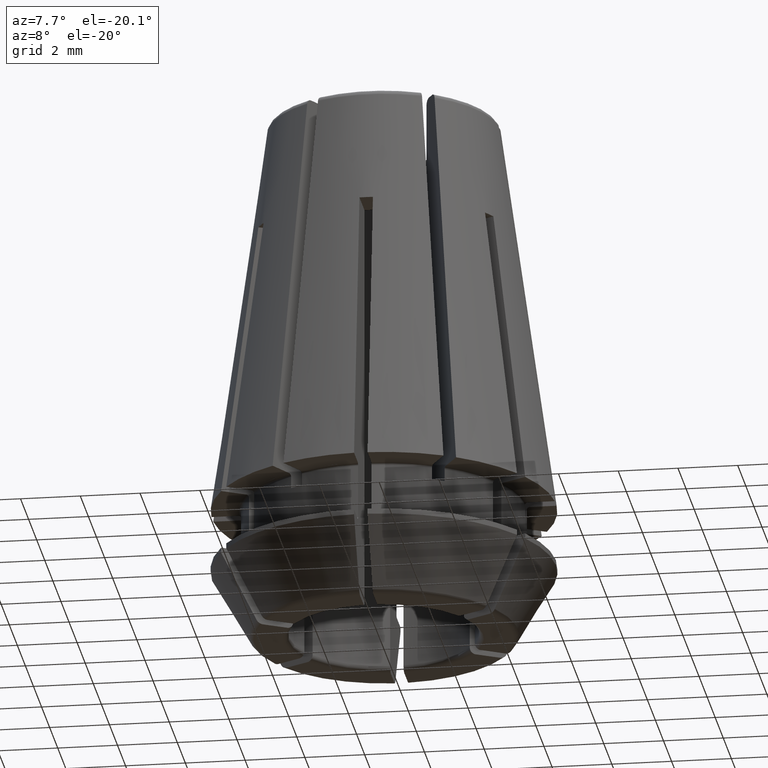
[diagram: clean part render]
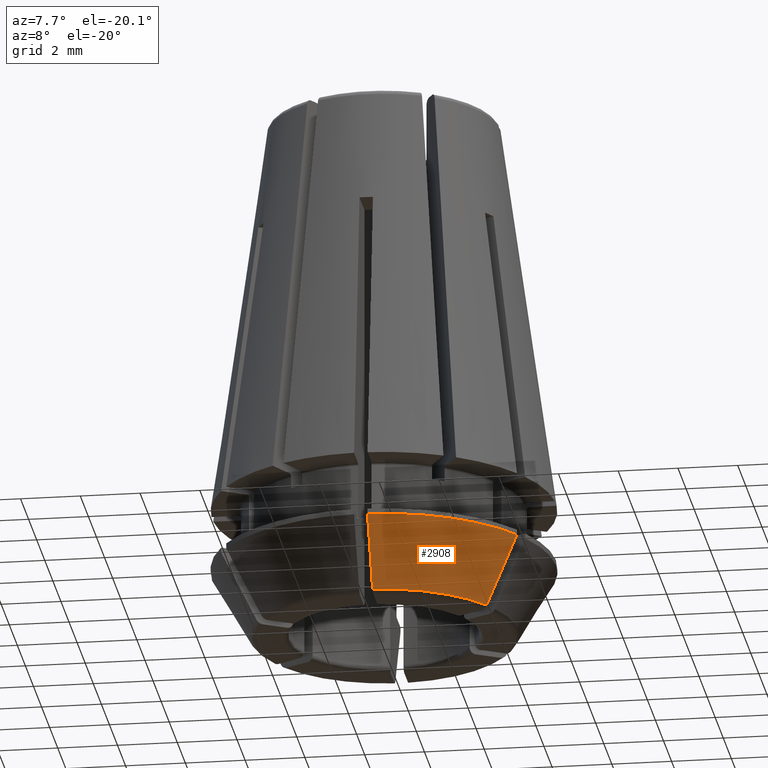
[diagram: same view with one face highlighted and labeled with its STEP entity id]
A machine part, auxiliary view. The second image highlights one B-rep face of the part: STEP entity #2908.
In plain terms, the highlighted conical surface has half-angle 30 deg.
Its self-contained STEP definition (entity closure, byte-faithful):
#63=CONICAL_SURFACE('',#3215,5.6232050807569,0.523598775598259);
#591=CIRCLE('',#3183,11643.0884272004);
#602=CIRCLE('',#3204,4.47879311067464);
#608=CIRCLE('',#3216,11643.0883600597);
#609=CIRCLE('',#3217,5.75);
#1231=ORIENTED_EDGE('',*,*,#1940,.F.);
#1232=ORIENTED_EDGE('',*,*,#1941,.F.);
#1233=ORIENTED_EDGE('',*,*,#1896,.T.);
#1234=ORIENTED_EDGE('',*,*,#1930,.T.);
#1896=EDGE_CURVE('',#2251,#2250,#591,.T.);
#1930=EDGE_CURVE('',#2250,#2273,#602,.T.);
#1940=EDGE_CURVE('',#2278,#2273,#608,.T.);
#1941=EDGE_CURVE('',#2251,#2278,#609,.T.);
#2250=VERTEX_POINT('',#5244);
#2251=VERTEX_POINT('',#5246);
#2273=VERTEX_POINT('',#5338);
#2278=VERTEX_POINT('',#5363);
#2550=EDGE_LOOP('',(#1231,#1232,#1233,#1234));
#2708=FACE_BOUND('',#2550,.T.);
#2908=ADVANCED_FACE('',(#2708),#63,.T.);
#3183=AXIS2_PLACEMENT_3D('',#5245,#3850,#3851);
#3204=AXIS2_PLACEMENT_3D('',#5339,#3906,#3907);
#3215=AXIS2_PLACEMENT_3D('',#5361,#3931,#3932);
#3216=AXIS2_PLACEMENT_3D('',#5362,#3933,#3934);
#3217=AXIS2_PLACEMENT_3D('',#5364,#3935,#3936);
#3850=DIRECTION('',(1.,0.,0.));
#3851=DIRECTION('',(0.,-0.865866893396021,-0.500274447599239));
#3906=DIRECTION('',(0.,0.,1.));
#3907=DIRECTION('',(1.,0.,0.));
#3931=DIRECTION('',(0.,0.,1.));
#3932=DIRECTION('',(1.,0.,0.));
#3933=DIRECTION('',(0.499999999996916,0.866025403786219,2.03322417782368E-12));
#3934=DIRECTION('',(0.749862725979123,-0.432933446694579,-0.500274447598826));
#3935=DIRECTION('',(0.,0.,1.));
#3936=DIRECTION('',(1.,0.,0.));
#5244=CARTESIAN_POINT('',(0.225000000000006,-4.47313790623837,-4.375));
#5245=CARTESIAN_POINT('',(0.225000000000008,10075.6192098555,5822.566426186));
#5246=CARTESIAN_POINT('',(0.225000000000008,-5.7455961396534,-2.17320508075687));
#5338=CARTESIAN_POINT('',(3.76135106143357,-2.43142466897067,-4.375));
#5339=CARTESIAN_POINT('',(0.,0.,-4.375));
#5361=CARTESIAN_POINT('',(0.,0.,-2.39282032302753));
#5362=CARTESIAN_POINT('',(-8725.85464427335,5037.6147201045,5822.56639259244));
#5363=CARTESIAN_POINT('',(4.86333221682565,-3.06765378567819,-2.17320508075687));
#5364=CARTESIAN_POINT('',(0.,0.,-2.17320508075687));